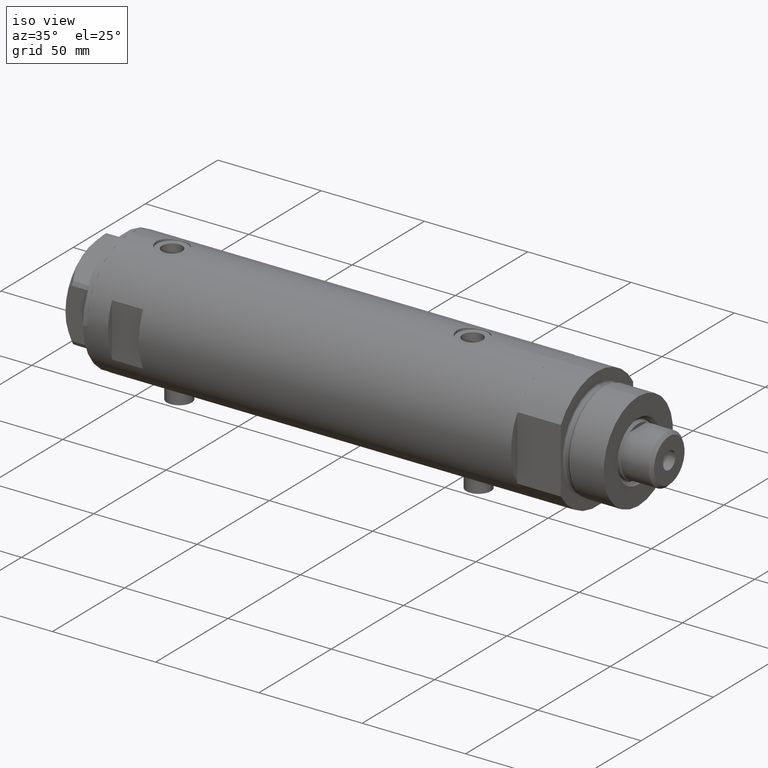
[diagram: clean part render]
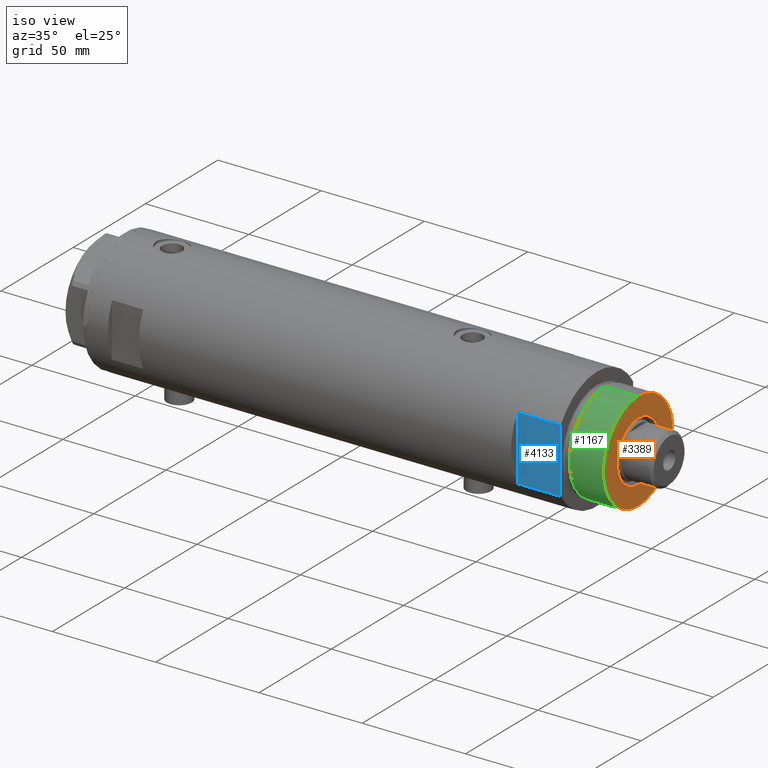
[diagram: same view with three faces highlighted in distinct colors, each labeled with its STEP entity id]
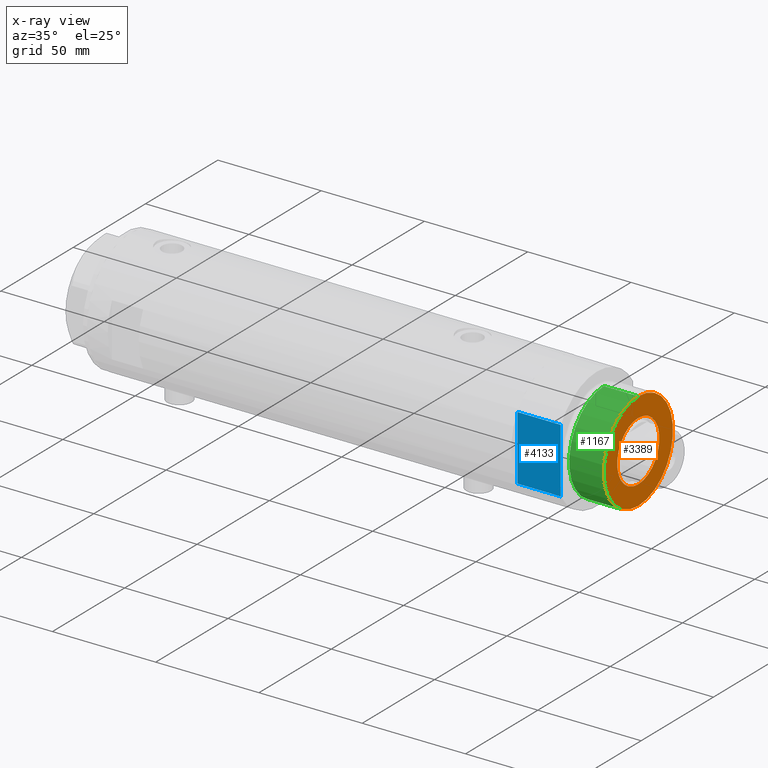
[diagram: x-ray of the same camera — body ghosted, the three highlighted faces saturated]
A machine part, iso view with three faces highlighted in distinct colors.
The next image is the same camera in x-ray (body ghosted, the three faces saturated) — at least one of them is partly hidden behind the body in this view.
Their STEP definitions:

[orange] entity #3389 — the highlighted planar face has unit normal (1, 0, -0).
#14 = PLANE ( 'NONE',  #2563 ) ;
#52 = ORIENTED_EDGE ( 'NONE', *, *, #2671, .T. ) ;
#164 = DIRECTION ( 'NONE',  ( -0.000000000000000000, -0.000000000000000000, -1.000000000000000000 ) ) ;
#176 = CIRCLE ( 'NONE', #2688, 14.54999999999997939 ) ;
#257 = DIRECTION ( 'NONE',  ( 0.000000000000000000, 0.000000000000000000, 1.000000000000000000 ) ) ;
#316 = CARTESIAN_POINT ( 'NONE',  ( 0.000000000000000000, 0.000000000000000000, 41.00000000000000000 ) ) ;
#440 = EDGE_LOOP ( 'NONE', ( #52, #457 ) ) ;
#457 = ORIENTED_EDGE ( 'NONE', *, *, #3256, .T. ) ;
#505 = DIRECTION ( 'NONE',  ( 1.000000000000000000, 0.000000000000000000, 0.000000000000000000 ) ) ;
#553 = AXIS2_PLACEMENT_3D ( 'NONE', #1656, #257, #2621 ) ;
#665 = EDGE_CURVE ( 'NONE', #3141, #3339, #1827, .T. ) ;
#676 = FACE_OUTER_BOUND ( 'NONE', #440, .T. ) ;
#738 = FACE_BOUND ( 'NONE', #1954, .T. ) ;
#792 = DIRECTION ( 'NONE',  ( 0.000000000000000000, 0.000000000000000000, 1.000000000000000000 ) ) ;
#798 = CARTESIAN_POINT ( 'NONE',  ( 14.54999999999997939, 0.000000000000000000, 41.00000000000000000 ) ) ;
#935 = CARTESIAN_POINT ( 'NONE',  ( -14.54999999999997939, 1.781861092759396721E-15, 41.00000000000000000 ) ) ;
#1101 = DIRECTION ( 'NONE',  ( 1.000000000000000000, 0.000000000000000000, -0.000000000000000000 ) ) ;
#1114 = ORIENTED_EDGE ( 'NONE', *, *, #665, .T. ) ;
#1115 = DIRECTION ( 'NONE',  ( 1.000000000000000000, 0.000000000000000000, 0.000000000000000000 ) ) ;
#1202 = CIRCLE ( 'NONE', #553, 24.00000000000000355 ) ;
#1252 = CARTESIAN_POINT ( 'NONE',  ( 0.000000000000000000, 0.000000000000000000, 41.00000000000000000 ) ) ;
#1369 = VERTEX_POINT ( 'NONE', #1509 ) ;
#1407 = AXIS2_PLACEMENT_3D ( 'NONE', #2841, #792, #4169 ) ;
#1509 = CARTESIAN_POINT ( 'NONE',  ( -24.00000000000000355, 0.000000000000000000, 41.00000000000000000 ) ) ;
#1526 = ORIENTED_EDGE ( 'NONE', *, *, #1826, .T. ) ;
#1606 = DIRECTION ( 'NONE',  ( -0.000000000000000000, -0.000000000000000000, -1.000000000000000000 ) ) ;
#1656 = CARTESIAN_POINT ( 'NONE',  ( 0.000000000000000000, 0.000000000000000000, 41.00000000000000000 ) ) ;
#1826 = EDGE_CURVE ( 'NONE', #3339, #3141, #176, .T. ) ;
#1827 = CIRCLE ( 'NONE', #3047, 14.54999999999997939 ) ;
#1954 = EDGE_LOOP ( 'NONE', ( #1114, #1526 ) ) ;
#2201 = CARTESIAN_POINT ( 'NONE',  ( 0.000000000000000000, 0.000000000000000000, 41.00000000000000000 ) ) ;
#2408 = CARTESIAN_POINT ( 'NONE',  ( 24.00000000000000355, 2.939152317953648289E-15, 41.00000000000000000 ) ) ;
#2558 = CIRCLE ( 'NONE', #1407, 24.00000000000000355 ) ;
#2563 = AXIS2_PLACEMENT_3D ( 'NONE', #316, #4186, #1101 ) ;
#2621 = DIRECTION ( 'NONE',  ( 1.000000000000000000, 0.000000000000000000, 0.000000000000000000 ) ) ;
#2671 = EDGE_CURVE ( 'NONE', #1369, #3470, #2558, .T. ) ;
#2688 = AXIS2_PLACEMENT_3D ( 'NONE', #2201, #164, #1115 ) ;
#2841 = CARTESIAN_POINT ( 'NONE',  ( 0.000000000000000000, 0.000000000000000000, 41.00000000000000000 ) ) ;
#3047 = AXIS2_PLACEMENT_3D ( 'NONE', #1252, #1606, #505 ) ;
#3141 = VERTEX_POINT ( 'NONE', #798 ) ;
#3256 = EDGE_CURVE ( 'NONE', #3470, #1369, #1202, .T. ) ;
#3339 = VERTEX_POINT ( 'NONE', #935 ) ;
#3389 = ADVANCED_FACE ( 'NONE', ( #738, #676 ), #14, .T. ) ;
#3470 = VERTEX_POINT ( 'NONE', #2408 ) ;
#4169 = DIRECTION ( 'NONE',  ( 1.000000000000000000, 0.000000000000000000, 0.000000000000000000 ) ) ;
#4186 = DIRECTION ( 'NONE',  ( 0.000000000000000000, 0.000000000000000000, 1.000000000000000000 ) ) ;

[blue] entity #4133 — the highlighted planar face has unit normal (-0, 1, 0).
#302 = CARTESIAN_POINT ( 'NONE',  ( 7.141428428542853091, -25.00000000000000000, 0.000000000000000000 ) ) ;
#322 = LINE ( 'NONE', #4000, #2490 ) ;
#430 = CARTESIAN_POINT ( 'NONE',  ( -15.66045976336583401, -25.00000000000000000, 21.00000000000000000 ) ) ;
#557 = CARTESIAN_POINT ( 'NONE',  ( 15.66045976336583045, -25.00000000000000000, 21.00000000000000355 ) ) ;
#723 = VERTEX_POINT ( 'NONE', #1567 ) ;
#786 = PLANE ( 'NONE',  #847 ) ;
#800 = DIRECTION ( 'NONE',  ( -1.000000000000000000, -0.000000000000000000, -0.000000000000000000 ) ) ;
#826 = EDGE_LOOP ( 'NONE', ( #1868, #954, #1675, #2225, #2460, #2980 ) ) ;
#847 = AXIS2_PLACEMENT_3D ( 'NONE', #2158, #1824, #2273 ) ;
#874 = VERTEX_POINT ( 'NONE', #2730 ) ;
#920 = CARTESIAN_POINT ( 'NONE',  ( -15.66045976336583401, -25.00000000000000000, 0.000000000000000000 ) ) ;
#954 = ORIENTED_EDGE ( 'NONE', *, *, #2960, .F. ) ;
#1001 = DIRECTION ( 'NONE',  ( -0.000000000000000000, -0.000000000000000000, 1.000000000000000000 ) ) ;
#1104 = VECTOR ( 'NONE', #800, 1000.000000000000000 ) ;
#1386 = CARTESIAN_POINT ( 'NONE',  ( -15.66045976336583045, -24.99999999999999645, 20.99999999999999645 ) ) ;
#1553 = FACE_OUTER_BOUND ( 'NONE', #826, .T. ) ;
#1567 = CARTESIAN_POINT ( 'NONE',  ( 15.66045976336583401, -25.00000000000000000, 0.000000000000000000 ) ) ;
#1623 = VECTOR ( 'NONE', #3619, 1000.000000000000000 ) ;
#1675 = ORIENTED_EDGE ( 'NONE', *, *, #2175, .F. ) ;
#1738 = EDGE_CURVE ( 'NONE', #3622, #874, #2224, .T. ) ;
#1797 = VERTEX_POINT ( 'NONE', #4266 ) ;
#1810 = DIRECTION ( 'NONE',  ( -1.000000000000000000, -0.000000000000000000, -0.000000000000000000 ) ) ;
#1824 = DIRECTION ( 'NONE',  ( -0.000000000000000000, 1.000000000000000000, 0.000000000000000000 ) ) ;
#1855 = LINE ( 'NONE', #3222, #2274 ) ;
#1868 = ORIENTED_EDGE ( 'NONE', *, *, #3977, .T. ) ;
#2093 = DIRECTION ( 'NONE',  ( -1.000000000000000000, -0.000000000000000000, -0.000000000000000000 ) ) ;
#2158 = CARTESIAN_POINT ( 'NONE',  ( -15.66045976336583401, -25.00000000000000000, 0.000000000000000000 ) ) ;
#2175 = EDGE_CURVE ( 'NONE', #874, #1797, #3446, .T. ) ;
#2224 = LINE ( 'NONE', #2850, #1104 ) ;
#2225 = ORIENTED_EDGE ( 'NONE', *, *, #1738, .F. ) ;
#2273 = DIRECTION ( 'NONE',  ( 0.000000000000000000, -0.000000000000000000, 1.000000000000000000 ) ) ;
#2274 = VECTOR ( 'NONE', #2933, 1000.000000000000000 ) ;
#2457 = EDGE_CURVE ( 'NONE', #723, #3622, #3648, .T. ) ;
#2460 = ORIENTED_EDGE ( 'NONE', *, *, #2457, .F. ) ;
#2490 = VECTOR ( 'NONE', #1001, 1000.000000000000000 ) ;
#2730 = CARTESIAN_POINT ( 'NONE',  ( -7.141428428542853091, -25.00000000000000000, 0.000000000000000000 ) ) ;
#2850 = CARTESIAN_POINT ( 'NONE',  ( -15.66045976336583401, -25.00000000000000000, 0.000000000000000000 ) ) ;
#2852 = VECTOR ( 'NONE', #1810, 1000.000000000000000 ) ;
#2933 = DIRECTION ( 'NONE',  ( -0.000000000000000000, -0.000000000000000000, 1.000000000000000000 ) ) ;
#2960 = EDGE_CURVE ( 'NONE', #1797, #3024, #1855, .T. ) ;
#2980 = ORIENTED_EDGE ( 'NONE', *, *, #3250, .T. ) ;
#3024 = VERTEX_POINT ( 'NONE', #1386 ) ;
#3085 = CARTESIAN_POINT ( 'NONE',  ( -15.66045976336583401, -25.00000000000000000, 0.000000000000000000 ) ) ;
#3183 = VERTEX_POINT ( 'NONE', #557 ) ;
#3222 = CARTESIAN_POINT ( 'NONE',  ( -15.66045976336583401, -25.00000000000000000, 0.000000000000000000 ) ) ;
#3250 = EDGE_CURVE ( 'NONE', #723, #3183, #322, .T. ) ;
#3446 = LINE ( 'NONE', #3085, #3708 ) ;
#3619 = DIRECTION ( 'NONE',  ( -1.000000000000000000, -0.000000000000000000, -0.000000000000000000 ) ) ;
#3622 = VERTEX_POINT ( 'NONE', #302 ) ;
#3648 = LINE ( 'NONE', #920, #1623 ) ;
#3708 = VECTOR ( 'NONE', #2093, 1000.000000000000000 ) ;
#3824 = LINE ( 'NONE', #430, #2852 ) ;
#3977 = EDGE_CURVE ( 'NONE', #3183, #3024, #3824, .T. ) ;
#4000 = CARTESIAN_POINT ( 'NONE',  ( 15.66045976336583401, -25.00000000000000000, 0.000000000000000000 ) ) ;
#4133 = ADVANCED_FACE ( 'NONE', ( #1553 ), #786, .F. ) ;
#4266 = CARTESIAN_POINT ( 'NONE',  ( -15.66045976336582690, -25.00000000000000000, 0.000000000000000000 ) ) ;

[green] entity #1167 — the highlighted cylindrical surface (partial cylindrical patch) has radius 24 mm, axis along (-1, -0, 0).
#11 = CIRCLE ( 'NONE', #2543, 24.00000000000000355 ) ;
#19 = AXIS2_PLACEMENT_3D ( 'NONE', #989, #4344, #1622 ) ;
#72 = EDGE_CURVE ( 'NONE', #3470, #212, #1377, .T. ) ;
#165 = EDGE_CURVE ( 'NONE', #2484, #212, #11, .T. ) ;
#212 = VERTEX_POINT ( 'NONE', #2057 ) ;
#427 = DIRECTION ( 'NONE',  ( -0.000000000000000000, -0.000000000000000000, 1.000000000000000000 ) ) ;
#630 = CYLINDRICAL_SURFACE ( 'NONE', #19, 24.00000000000000355 ) ;
#682 = ORIENTED_EDGE ( 'NONE', *, *, #165, .T. ) ;
#792 = DIRECTION ( 'NONE',  ( 0.000000000000000000, 0.000000000000000000, 1.000000000000000000 ) ) ;
#820 = CARTESIAN_POINT ( 'NONE',  ( -24.00000000000000355, 0.000000000000000000, 24.37384048104054557 ) ) ;
#989 = CARTESIAN_POINT ( 'NONE',  ( 0.000000000000000000, 0.000000000000000000, 41.00000000000000000 ) ) ;
#1167 = ADVANCED_FACE ( 'NONE', ( #4031 ), #630, .T. ) ;
#1369 = VERTEX_POINT ( 'NONE', #1509 ) ;
#1377 = LINE ( 'NONE', #3821, #2609 ) ;
#1407 = AXIS2_PLACEMENT_3D ( 'NONE', #2841, #792, #4169 ) ;
#1509 = CARTESIAN_POINT ( 'NONE',  ( -24.00000000000000355, 0.000000000000000000, 41.00000000000000000 ) ) ;
#1622 = DIRECTION ( 'NONE',  ( -1.000000000000000000, 0.000000000000000000, 0.000000000000000000 ) ) ;
#1718 = DIRECTION ( 'NONE',  ( 1.000000000000000000, 0.000000000000000000, 0.000000000000000000 ) ) ;
#1721 = EDGE_CURVE ( 'NONE', #1369, #2484, #4111, .T. ) ;
#1786 = CARTESIAN_POINT ( 'NONE',  ( 0.000000000000000000, 0.000000000000000000, 24.37384048104054557 ) ) ;
#2057 = CARTESIAN_POINT ( 'NONE',  ( 24.00000000000000355, 2.939152317953648289E-15, 24.37384048104054557 ) ) ;
#2079 = DIRECTION ( 'NONE',  ( -0.000000000000000000, -0.000000000000000000, -1.000000000000000000 ) ) ;
#2398 = CARTESIAN_POINT ( 'NONE',  ( -24.00000000000000355, 0.000000000000000000, 41.00000000000000000 ) ) ;
#2408 = CARTESIAN_POINT ( 'NONE',  ( 24.00000000000000355, 2.939152317953648289E-15, 41.00000000000000000 ) ) ;
#2428 = EDGE_LOOP ( 'NONE', ( #4177, #4026, #3014, #682 ) ) ;
#2484 = VERTEX_POINT ( 'NONE', #820 ) ;
#2516 = DIRECTION ( 'NONE',  ( -0.000000000000000000, -0.000000000000000000, -1.000000000000000000 ) ) ;
#2543 = AXIS2_PLACEMENT_3D ( 'NONE', #1786, #427, #1718 ) ;
#2558 = CIRCLE ( 'NONE', #1407, 24.00000000000000355 ) ;
#2609 = VECTOR ( 'NONE', #2079, 1000.000000000000000 ) ;
#2671 = EDGE_CURVE ( 'NONE', #1369, #3470, #2558, .T. ) ;
#2841 = CARTESIAN_POINT ( 'NONE',  ( 0.000000000000000000, 0.000000000000000000, 41.00000000000000000 ) ) ;
#2914 = VECTOR ( 'NONE', #2516, 1000.000000000000000 ) ;
#3014 = ORIENTED_EDGE ( 'NONE', *, *, #1721, .T. ) ;
#3470 = VERTEX_POINT ( 'NONE', #2408 ) ;
#3821 = CARTESIAN_POINT ( 'NONE',  ( 24.00000000000000355, 2.939152317953648289E-15, 41.00000000000000000 ) ) ;
#4026 = ORIENTED_EDGE ( 'NONE', *, *, #2671, .F. ) ;
#4031 = FACE_OUTER_BOUND ( 'NONE', #2428, .T. ) ;
#4111 = LINE ( 'NONE', #2398, #2914 ) ;
#4169 = DIRECTION ( 'NONE',  ( 1.000000000000000000, 0.000000000000000000, 0.000000000000000000 ) ) ;
#4177 = ORIENTED_EDGE ( 'NONE', *, *, #72, .F. ) ;
#4344 = DIRECTION ( 'NONE',  ( -0.000000000000000000, -0.000000000000000000, -1.000000000000000000 ) ) ;